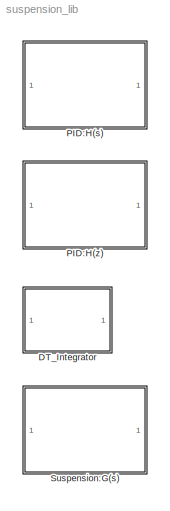
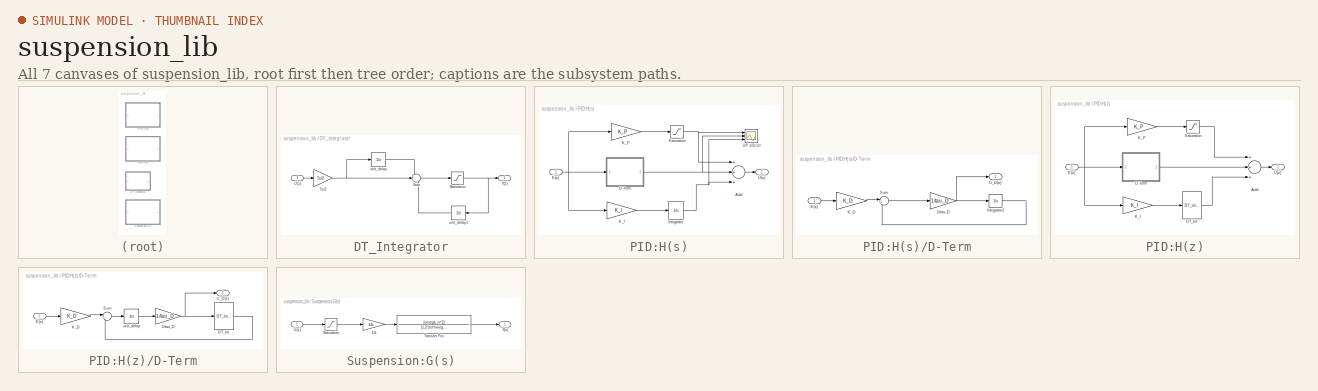
[diagram: thumbnail index - all 7 canvases of the model, root first then tree order]
MODEL suspension_lib
KIND library
BLOCK [SubSystem] DT_Integrator
  FunctionWithSeparateData = off
  MaskCallbackString = |||
  MaskEnableString = on,on,on,on
  MaskHideContents = off
  MaskIconFrame = on
  MaskIconOpaque = on
  MaskIconRotate = none
  MaskIconUnits = autoscale
  MaskPortRotate = default
  MaskPromptString = Ts (seconds)|X0|X_MIN|X_MAX
  MaskStyleString = edit,edit,edit,edit
  MaskToolTipString = on,on,on,on
  MaskTunableValueString = on,on,on,on
  MaskValueString = .01|0|-inf|inf
  MaskVariables = Ts=@1;X0=@2;X_MIN=@3;X_MAX=@4;
  MaskVisibilityString = on,on,on,on
  MinAlgLoopOccurrences = off
  Opaque = off
  Ports = [1, 1]
  PropExecContextOutsideSubsystem = off
  RTWSystemCode = Auto
  RequestExecContextInheritance = off
  SID = 15
BLOCK [Saturate] DT_Integrator/Saturation
  InputPortMap = u0
  LowerLimit = X_MIN
  Ports = [1, 1]
  SID = 17
  UpperLimit = X_MAX
BLOCK [Sum] DT_Integrator/Sum
  IconShape = round
  InputSameDT = off
  Inputs = +++
  OutDataTypeStr = Inherit: Inherit via internal rule
  Ports = [3, 1]
  SID = 18
  SaturateOnIntegerOverflow = off
BLOCK [Gain] DT_Integrator/Ts//2
  Gain = Ts/2
  OutDataTypeStr = Inherit: Inherit via internal rule
  ParamDataTypeStr = Inherit: Inherit via internal rule
  SID = 19
  SaturateOnIntegerOverflow = off
BLOCK [Inport] DT_Integrator/U(z)
  IconDisplay = Port number
  SID = 16
BLOCK [Outport] DT_Integrator/Y(z)
  IconDisplay = Port number
  SID = 22
BLOCK [UnitDelay] DT_Integrator/unit_delay
  InputProcessing = Elements as channels (sample based)
  SID = 20
  SampleTime = Ts
BLOCK [UnitDelay] DT_Integrator/unit_delay1
  InputProcessing = Elements as channels (sample based)
  SID = 21
  SampleTime = Ts
  X0 = X0
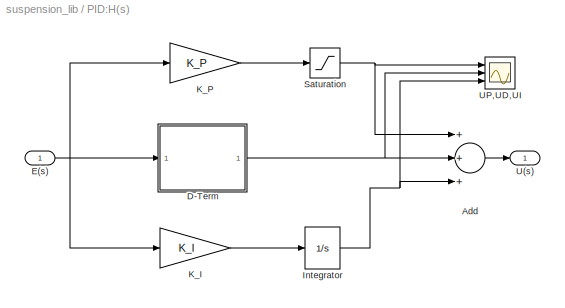
BLOCK [SubSystem] PID:H(s)
  FunctionWithSeparateData = off
  MaskCallbackString = |||||||||||
  MaskEnableString = on,on,on,on,on,on,on,on,on,on,on,on
  MaskHideContents = off
  MaskIconFrame = on
  MaskIconOpaque = on
  MaskIconRotate = none
  MaskIconUnits = autoscale
  MaskPortRotate = default
  MaskPromptString = K_P|K_D|tau_D|P_MAX|P_MIN|X_DMAX|X_DMIN|X_D0|K_I|X_IMAX|X_IMIN|X_I0
  MaskStyleString = edit,edit,edit,edit,edit,edit,edit,edit,edit,edit,edit,edit
  MaskToolTipString = on,on,on,on,on,on,on,on,on,on,on,on
  MaskTunableValueString = on,on,on,on,on,on,on,on,on,on,on,on
  MaskValueString = 200000|100|.01/pi|1500*2|-1500*2|1500*2|-1500*2|0|600000|1500|-1500|0
  MaskVariables = K_P=@1;K_D=@2;tau_D=@3;P_MAX=@4;P_MIN=@5;X_DMAX=@6;X_DMIN=@7;X_D0=@8;K_I=@9;X_IMAX=@10;X_IMIN=@11;X_I0=@12;
  MaskVisibilityString = on,on,on,on,on,on,on,on,on,on,on,on
  MinAlgLoopOccurrences = off
  Opaque = off
  Ports = [1, 1]
  PropExecContextOutsideSubsystem = off
  RTWSystemCode = Auto
  RequestExecContextInheritance = off
  SID = 1
BLOCK [Sum] PID:H(s)/Add
  InputSameDT = off
  Inputs = +++
  OutDataTypeStr = Inherit: Inherit via internal rule
  Ports = [3, 1]
  SID = 3
  SaturateOnIntegerOverflow = off
BLOCK [SubSystem] PID:H(s)/D-Term
  FunctionWithSeparateData = off
  MaskHideContents = off
  MinAlgLoopOccurrences = off
  Opaque = off
  Ports = [1, 1]
  PropExecContextOutsideSubsystem = off
  RTWSystemCode = Auto
  RequestExecContextInheritance = off
  SID = 4
BLOCK [Gain] PID:H(s)/D-Term/1//tau_D
  Gain = 1/tau_D
  OutDataTypeStr = Inherit: Inherit via internal rule
  ParamDataTypeStr = Inherit: Inherit via internal rule
  SID = 6
  SaturateOnIntegerOverflow = off
BLOCK [Inport] PID:H(s)/D-Term/E(s)
  IconDisplay = Port number
  SID = 5
BLOCK [Integrator] PID:H(s)/D-Term/Integrator1
  InitialCondition = X_D0
  LimitOutput = on
  LowerSaturationLimit = X_DMIN*tau_D
  Ports = [1, 1]
  SID = 7
  UpperSaturationLimit = X_DMAX*tau_D
BLOCK [Gain] PID:H(s)/D-Term/K_D
  Gain = K_D
  OutDataTypeStr = Inherit: Inherit via internal rule
  ParamDataTypeStr = Inherit: Inherit via internal rule
  SID = 8
  SaturateOnIntegerOverflow = off
BLOCK [Sum] PID:H(s)/D-Term/Sum
  IconShape = round
  InputSameDT = off
  Inputs = |+-
  OutDataTypeStr = Inherit: Inherit via internal rule
  Ports = [2, 1]
  SID = 9
  SaturateOnIntegerOverflow = off
BLOCK [Outport] PID:H(s)/D-Term/U_D(s)
  IconDisplay = Port number
  SID = 10
BLOCK [Inport] PID:H(s)/E(s)
  IconDisplay = Port number
  SID = 2
BLOCK [Integrator] PID:H(s)/Integrator
  InitialCondition = X_I0
  LimitOutput = on
  LowerSaturationLimit = X_IMIN
  Ports = [1, 1]
  SID = 11
  UpperSaturationLimit = X_IMAX
BLOCK [Gain] PID:H(s)/K_I
  Gain = K_I
  OutDataTypeStr = Inherit: Inherit via internal rule
  ParamDataTypeStr = Inherit: Inherit via internal rule
  SID = 12
  SaturateOnIntegerOverflow = off
BLOCK [Gain] PID:H(s)/K_P
  Gain = K_P
  OutDataTypeStr = Inherit: Inherit via internal rule
  ParamDataTypeStr = Inherit: Inherit via internal rule
  SID = 13
  SaturateOnIntegerOverflow = off
BLOCK [Saturate] PID:H(s)/Saturation
  InputPortMap = u0
  LowerLimit = P_MIN
  Ports = [1, 1]
  SID = 44
  UpperLimit = P_MAX
BLOCK [Outport] PID:H(s)/U(s)
  IconDisplay = Port number
  SID = 14
BLOCK [Scope] PID:H(s)/UP,UD,UI
  DataFormat = StructureWithTime
  Floating = off
  NumInputPorts = 3
  Ports = [3]
  SID = 43
  SampleTime = 0
  YMax = 5~5~5
  YMin = -5~-5~-5
  ZoomMode = yonly
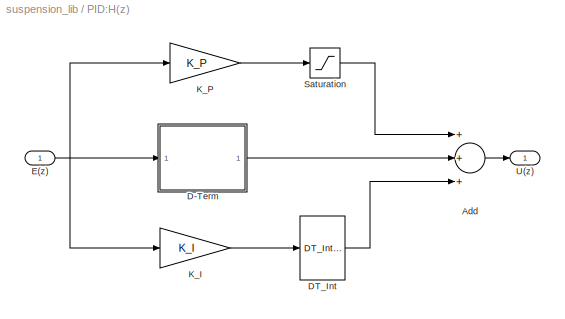
BLOCK [SubSystem] PID:H(z)
  FunctionWithSeparateData = off
  MaskCallbackString = ||||||||||||
  MaskEnableString = on,on,on,on,on,on,on,on,on,on,on,on,on
  MaskHideContents = off
  MaskIconFrame = on
  MaskIconOpaque = on
  MaskIconRotate = none
  MaskIconUnits = autoscale
  MaskPortRotate = default
  MaskPromptString = Ts (seconds)|K_P|K_D|tau_D|P_MAX|P_MIN|X_DMAX|X_DMIN|X_D0|K_I|X_IMAX|X_IMIN|X_I0
  MaskStyleString = edit,edit,edit,edit,edit,edit,edit,edit,edit,edit,edit,edit,edit
  MaskToolTipString = on,on,on,on,on,on,on,on,on,on,on,on,on
  MaskTunableValueString = on,on,on,on,on,on,on,on,on,on,on,on,on
  MaskValueString = .01|200000|100|.01/pi|1500*2|-1500*2|1500*2|-1500*2|0|600000|1500|-1500|0
  MaskVariables = Ts=@1;K_P=@2;K_D=@3;tau_D=@4;P_MAX=@5;P_MIN=@6;X_DMAX=@7;X_DMIN=@8;X_D0=@9;K_I=@10;X_IMAX=@11;X_IMIN=@12;X_I0=@13;
  MaskVisibilityString = on,on,on,on,on,on,on,on,on,on,on,on,on
  MinAlgLoopOccurrences = off
  Opaque = off
  Ports = [1, 1]
  PropExecContextOutsideSubsystem = off
  RTWSystemCode = Auto
  RequestExecContextInheritance = off
  SID = 23
BLOCK [Sum] PID:H(z)/Add
  InputSameDT = off
  Inputs = +++
  OutDataTypeStr = Inherit: Inherit via internal rule
  Ports = [3, 1]
  SID = 25
  SaturateOnIntegerOverflow = off
BLOCK [SubSystem] PID:H(z)/D-Term
  FunctionWithSeparateData = off
  MaskHideContents = off
  MinAlgLoopOccurrences = off
  Opaque = off
  Ports = [1, 1]
  PropExecContextOutsideSubsystem = off
  RTWSystemCode = Auto
  RequestExecContextInheritance = off
  SID = 26
BLOCK [Gain] PID:H(z)/D-Term/1//tau_D
  Gain = 1/tau_D
  OutDataTypeStr = Inherit: Inherit via internal rule
  ParamDataTypeStr = Inherit: Inherit via internal rule
  SID = 28
  SaturateOnIntegerOverflow = off
BLOCK [Reference] PID:H(z)/D-Term/DT_Int  REF=suspension_lib/DT_Integrator  (lib defined in mdl_a9ee7fd58a3c)
  FunctionWithSeparateData = off
  GeneratePreprocessorConditionals = off
  Ports = [1, 1]
  RTWMemSecDataConstants = Inherit from model
  RTWMemSecDataInternal = Inherit from model
  RTWMemSecDataParameters = Inherit from model
  RTWMemSecFuncExecute = Inherit from model
  RTWMemSecFuncInitTerm = Inherit from model
  SID = 29
  ShowPortLabels = FromPortIcon
  SourceBlock = suspension_lib/DT_Integrator
  SystemSampleTime = -1
  Ts = Ts
  X0 = X_D0
  X_MAX = X_DMAX*tau_D
  X_MIN = X_DMIN*tau_D
BLOCK [Inport] PID:H(z)/D-Term/E(s)
  IconDisplay = Port number
  SID = 27
BLOCK [Gain] PID:H(z)/D-Term/K_D
  Gain = K_D
  OutDataTypeStr = Inherit: Inherit via internal rule
  ParamDataTypeStr = Inherit: Inherit via internal rule
  SID = 30
  SaturateOnIntegerOverflow = off
BLOCK [Sum] PID:H(z)/D-Term/Sum
  IconShape = round
  InputSameDT = off
  Inputs = |+-
  OutDataTypeStr = Inherit: Inherit via internal rule
  Ports = [2, 1]
  SID = 31
  SaturateOnIntegerOverflow = off
BLOCK [Outport] PID:H(z)/D-Term/U_D(s)
  IconDisplay = Port number
  SID = 32
BLOCK [UnitDelay] PID:H(z)/D-Term/unit_delay
  InputProcessing = Elements as channels (sample based)
  SID = 47
  SampleTime = Ts
BLOCK [Reference] PID:H(z)/DT_Int  REF=suspension_lib/DT_Integrator  (lib defined in mdl_a9ee7fd58a3c)
  FunctionWithSeparateData = off
  GeneratePreprocessorConditionals = off
  Ports = [1, 1]
  RTWMemSecDataConstants = Inherit from model
  RTWMemSecDataInternal = Inherit from model
  RTWMemSecDataParameters = Inherit from model
  RTWMemSecFuncExecute = Inherit from model
  RTWMemSecFuncInitTerm = Inherit from model
  SID = 33
  ShowPortLabels = FromPortIcon
  SourceBlock = suspension_lib/DT_Integrator
  SystemSampleTime = -1
  Ts = Ts
  X0 = X_I0
  X_MAX = X_IMAX
  X_MIN = X_IMIN
BLOCK [Inport] PID:H(z)/E(z)
  IconDisplay = Port number
  SID = 24
BLOCK [Gain] PID:H(z)/K_I
  Gain = K_I
  OutDataTypeStr = Inherit: Inherit via internal rule
  ParamDataTypeStr = Inherit: Inherit via internal rule
  SID = 34
  SaturateOnIntegerOverflow = off
BLOCK [Gain] PID:H(z)/K_P
  Gain = K_P
  OutDataTypeStr = Inherit: Inherit via internal rule
  ParamDataTypeStr = Inherit: Inherit via internal rule
  SID = 35
  SaturateOnIntegerOverflow = off
BLOCK [Saturate] PID:H(z)/Saturation
  InputPortMap = u0
  LowerLimit = P_MIN
  Ports = [1, 1]
  SID = 45
  UpperLimit = P_MAX
BLOCK [Outport] PID:H(z)/U(z)
  IconDisplay = Port number
  SID = 36
BLOCK [SubSystem] Suspension:G(s)
  FunctionWithSeparateData = off
  MaskCallbackString = |||
  MaskEnableString = on,on,on,on
  MaskHideContents = off
  MaskIconFrame = on
  MaskIconOpaque = on
  MaskIconRotate = none
  MaskIconUnits = autoscale
  MaskInitialization = omega_n=sqrt(k/m);\nzet=c/(2*sqrt(k*m));
  MaskPortRotate = default
  MaskPromptString = k (N/m)|m (kg)|c (N-s/m)|u_max (N)
  MaskStyleString = edit,edit,edit,edit
  MaskToolTipString = on,on,on,on
  MaskTunableValueString = on,on,on,on
  MaskValueString = 31000|15|830|1500
  MaskVariables = k=@1;m=@2;c=@3;U_MAX=@4;
  MaskVisibilityString = on,on,on,on
  MinAlgLoopOccurrences = off
  Opaque = off
  Ports = [1, 1]
  PropExecContextOutsideSubsystem = off
  RTWSystemCode = Auto
  RequestExecContextInheritance = off
  SID = 37
BLOCK [Gain] Suspension:G(s)/1//k
  Gain = 1/k
  OutDataTypeStr = Inherit: Inherit via internal rule
  ParamDataTypeStr = Inherit: Inherit via internal rule
  SID = 39
  SaturateOnIntegerOverflow = off
BLOCK [Saturate] Suspension:G(s)/Saturation
  InputPortMap = u0
  LowerLimit = -U_MAX
  Ports = [1, 1]
  SID = 40
  UpperLimit = U_MAX
BLOCK [TransferFcn] Suspension:G(s)/Transfer Fcn
  Denominator = [1,2*zet*omega_n,omega_n^2]
  Numerator = [omega_n^2]
  SID = 41
BLOCK [Inport] Suspension:G(s)/U(s)
  IconDisplay = Port number
  SID = 38
BLOCK [Outport] Suspension:G(s)/Y(s)
  IconDisplay = Port number
  SID = 42
NET DT_Integrator/Saturation:1 -> DT_Integrator/Y(z):1, DT_Integrator/unit_delay1:1
LINE DT_Integrator/Sum:1 -> DT_Integrator/Saturation:1
NET DT_Integrator/Ts//2:1 -> DT_Integrator/Sum:2, DT_Integrator/unit_delay:1
LINE DT_Integrator/U(z):1 -> DT_Integrator/Ts//2:1
LINE DT_Integrator/unit_delay1:1 -> DT_Integrator/Sum:3
LINE DT_Integrator/unit_delay:1 -> DT_Integrator/Sum:1
LINE PID:H(s)/Add:1 -> PID:H(s)/U(s):1
NET PID:H(s)/D-Term/1//tau_D:1 -> PID:H(s)/D-Term/Integrator1:1, PID:H(s)/D-Term/U_D(s):1
LINE PID:H(s)/D-Term/E(s):1 -> PID:H(s)/D-Term/K_D:1
LINE PID:H(s)/D-Term/Integrator1:1 -> PID:H(s)/D-Term/Sum:2
LINE PID:H(s)/D-Term/K_D:1 -> PID:H(s)/D-Term/Sum:1
LINE PID:H(s)/D-Term/Sum:1 -> PID:H(s)/D-Term/1//tau_D:1
NET PID:H(s)/D-Term:1 -> PID:H(s)/Add:2, PID:H(s)/UP,UD,UI:2
NET PID:H(s)/E(s):1 -> PID:H(s)/D-Term:1, PID:H(s)/K_I:1, PID:H(s)/K_P:1
NET PID:H(s)/Integrator:1 -> PID:H(s)/Add:3, PID:H(s)/UP,UD,UI:3
LINE PID:H(s)/K_I:1 -> PID:H(s)/Integrator:1
LINE PID:H(s)/K_P:1 -> PID:H(s)/Saturation:1
NET PID:H(s)/Saturation:1 -> PID:H(s)/Add:1, PID:H(s)/UP,UD,UI:1
LINE PID:H(z)/Add:1 -> PID:H(z)/U(z):1
NET PID:H(z)/D-Term/1//tau_D:1 -> PID:H(z)/D-Term/DT_Int:1, PID:H(z)/D-Term/U_D(s):1
LINE PID:H(z)/D-Term/DT_Int:1 -> PID:H(z)/D-Term/Sum:2
LINE PID:H(z)/D-Term/E(s):1 -> PID:H(z)/D-Term/K_D:1
LINE PID:H(z)/D-Term/K_D:1 -> PID:H(z)/D-Term/Sum:1
LINE PID:H(z)/D-Term/Sum:1 -> PID:H(z)/D-Term/unit_delay:1
LINE PID:H(z)/D-Term/unit_delay:1 -> PID:H(z)/D-Term/1//tau_D:1
LINE PID:H(z)/D-Term:1 -> PID:H(z)/Add:2
LINE PID:H(z)/DT_Int:1 -> PID:H(z)/Add:3
NET PID:H(z)/E(z):1 -> PID:H(z)/D-Term:1, PID:H(z)/K_I:1, PID:H(z)/K_P:1
LINE PID:H(z)/K_I:1 -> PID:H(z)/DT_Int:1
LINE PID:H(z)/K_P:1 -> PID:H(z)/Saturation:1
LINE PID:H(z)/Saturation:1 -> PID:H(z)/Add:1
LINE Suspension:G(s)/1//k:1 -> Suspension:G(s)/Transfer Fcn:1
LINE Suspension:G(s)/Saturation:1 -> Suspension:G(s)/1//k:1
LINE Suspension:G(s)/Transfer Fcn:1 -> Suspension:G(s)/Y(s):1
LINE Suspension:G(s)/U(s):1 -> Suspension:G(s)/Saturation:1
note: NET lines group one-source signal fan-out (src -> all destinations, sorted); 1:1 wires keep LINE
